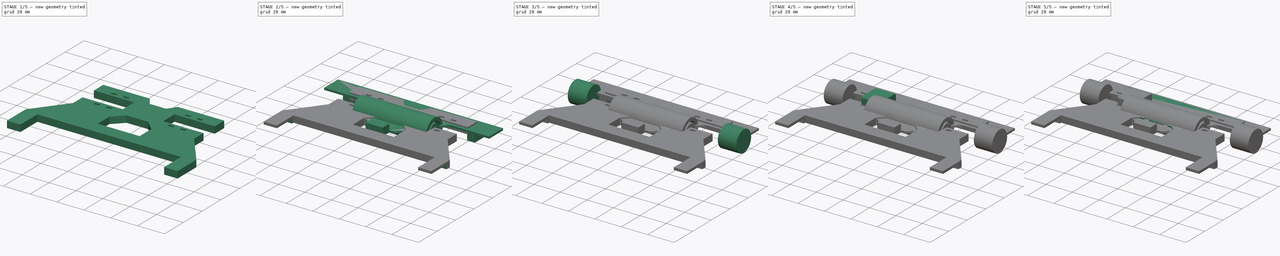
[diagram: build sequence overview — one tinted view per stage of 5, left to right]
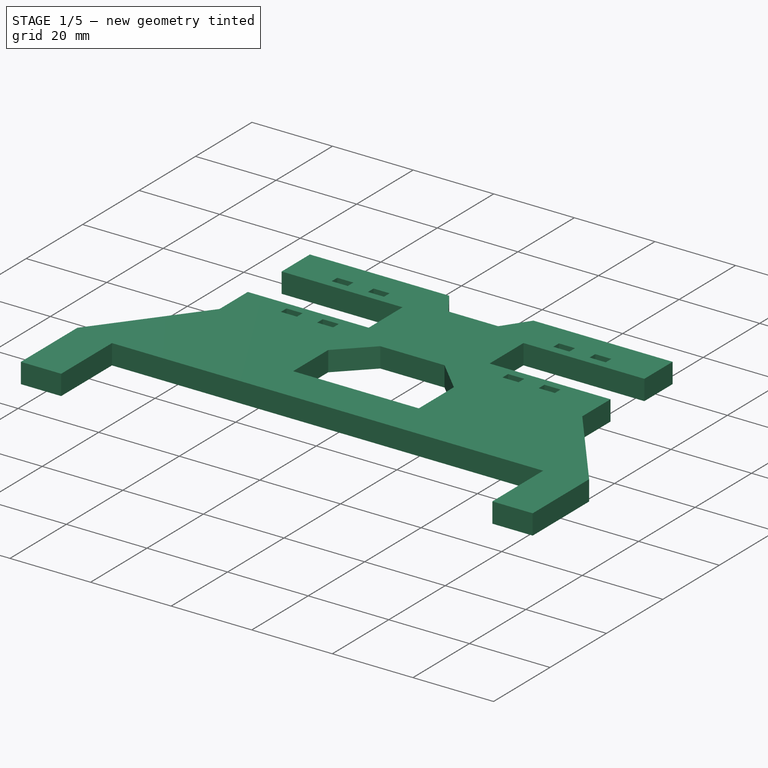
[diagram: stage 1 of 5 — iso view after this stage's code; geometry added in this stage tinted green]
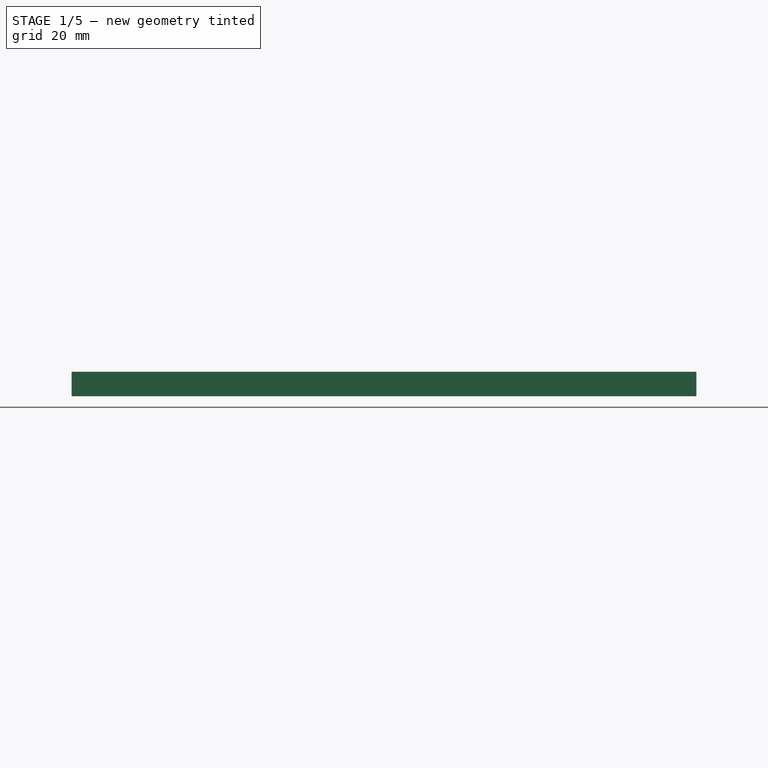
[diagram: stage 1 of 5 — front view after this stage's code; geometry added in this stage tinted green]
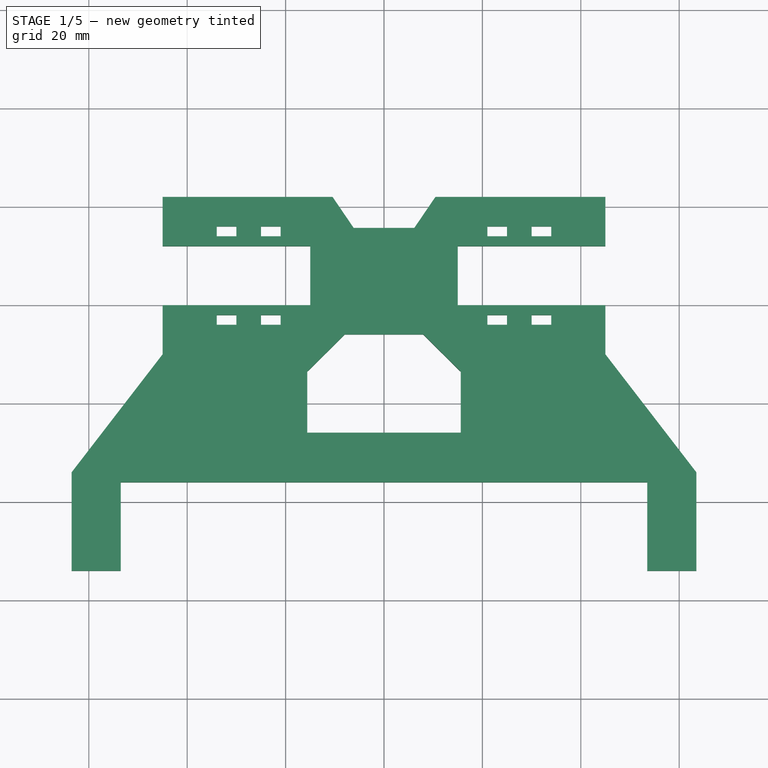
[diagram: stage 1 of 5 — top view after this stage's code; geometry added in this stage tinted green]
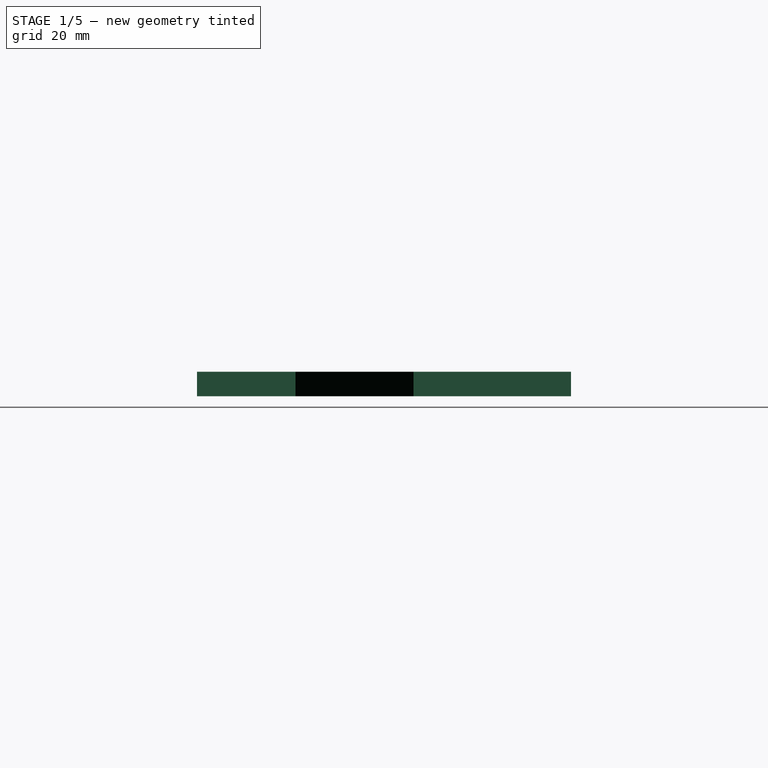
[diagram: stage 1 of 5 — right view after this stage's code; geometry added in this stage tinted green]
FCSTD DOCUMENT  (FreeCAD 0.21R33771 (Git))
Label: chassis_rec
License: All rights reserved
LicenseURL: http://en.wikipedia.org/wiki/All_rights_reserved
objects: Sketcher::SketchObject×18, PartDesign::Pad×10, PartDesign::Pocket×7, PartDesign::Body×6, Part::Feature×6, PartDesign::Mirrored×4, PartDesign::Fillet×2, Part::Cylinder×2, PartDesign::ShapeBinder×1, PartDesign::Plane×1, PartDesign::Chamfer×1, PartDesign::Revolution×1
note: 80 computed .brp shape members not serialized (recipe doc carries the construction recipe); baked Part::Feature solids carry a one-line shape summary decoded from their .brp

FEATURE [PartDesign::Body] Body003002  label="sensor"
  Group = -> [Sketch010,Pad005002,Sketch011,Pad005003,Sketch012,Pad005004]
  Origin = -> Origin004
  Placement = pos=(0,-93.5,0) rot=(0,0,1;0rad)
  Tip = -> Pad005004
FEATURE [Part::Feature] Body003002001  label="sensor001"
  Placement = pos=(0,-62.5,-1) rot=(0,0,1;0rad)
  shape: bbox 125 x 50 x 13 mm, 46 faces (baked)
FEATURE [Part::Feature] Body002001  label="motor001"
  Placement = pos=(20,6,0) rot=(0,0,1;0rad)
  shape: bbox 38.5 x 12 x 10 mm, 22 faces (baked)
FEATURE [Part::Feature] Body001001  label="motor_support002"
  shape: bbox 14.86 x 16 x 5 mm, 14 faces (baked)
FEATURE [Sketcher::SketchObject] Sketch013
  FullyConstrained = true
  MapMode = 5
  Support = -> [XY_Plane005]
  sketch-geometry (21):
    g0: LineSegment StartX=-45 StartY=0 StartZ=0 EndX=-15 EndY=0 EndZ=0
    g1: LineSegment StartX=-15 StartY=0 StartZ=0 EndX=-15 EndY=12 EndZ=0
    g2: LineSegment StartX=-15 StartY=12 StartZ=0 EndX=-45 EndY=12 EndZ=0
    g3: LineSegment StartX=-45 StartY=12 StartZ=0 EndX=-45 EndY=22 EndZ=0
    g4: LineSegment StartX=-45 StartY=0 StartZ=0 EndX=-45 EndY=-10 EndZ=0
    g5: LineSegment StartX=45 StartY=0 StartZ=0 EndX=15 EndY=0 EndZ=0
    g6: LineSegment StartX=15 StartY=0 StartZ=0 EndX=15 EndY=12 EndZ=0
    g7: LineSegment StartX=15 StartY=12 StartZ=0 EndX=45 EndY=12 EndZ=0
    g8: LineSegment StartX=45 StartY=12 StartZ=0 EndX=45 EndY=22 EndZ=0
    g9: LineSegment StartX=45 StartY=0 StartZ=0 EndX=45 EndY=-10 EndZ=0
    g10: LineSegment StartX=-45 StartY=22 StartZ=0 EndX=45 EndY=22 EndZ=0
    g11: LineSegment StartX=-45 StartY=-10 StartZ=0 EndX=45 EndY=-10 EndZ=0
    g12: LineSegment StartX=-45 StartY=-10 StartZ=0 EndX=-63.5 EndY=-34 EndZ=0
    g13: LineSegment StartX=-63.5 StartY=-34 StartZ=0 EndX=-63.5 EndY=-54 EndZ=0
    g14: LineSegment StartX=-63.5 StartY=-54 StartZ=0 EndX=-53.5 EndY=-54 EndZ=0
    g15: LineSegment StartX=-53.5 StartY=-54 StartZ=0 EndX=-53.5 EndY=-36 EndZ=0
    g16: LineSegment StartX=-53.5 StartY=-36 StartZ=0 EndX=53.5 EndY=-36 EndZ=0
    g17: LineSegment StartX=53.5 StartY=-36 StartZ=0 EndX=53.5 EndY=-54 EndZ=0
    g18: LineSegment StartX=53.5 StartY=-54 StartZ=0 EndX=63.5 EndY=-54 EndZ=0
    g19: LineSegment StartX=63.5 StartY=-54 StartZ=0 EndX=63.5 EndY=-34 EndZ=0
    g20: LineSegment StartX=63.5 StartY=-34 StartZ=0 EndX=45 EndY=-10 EndZ=0
  constraints (59):
    c: PointOnObject(g0,g-1)
    c: PointOnObject(g0,g-1)
    c: Coincident(g0,g1)
    c: Vertical(g1)
    c: Coincident(g1,g2)
    c: Horizontal(g2)
    c: Coincident(g2,g3)
    c: Vertical(g3)
    c: Coincident(g0,g4)
    c: Vertical(g4)
    c: DistanceY(g1,g1) = 12
    c: DistanceY(g3,g3) = 10
    c: DistanceY(g4,g4) = 10
    c: DistanceX(g0,g0) = 30
    c: DistanceX(g0,g-1) = 15
    c: Vertical(g2,g0)
    c: Coincident(g5,g6)
    c: Vertical(g6)
    c: Coincident(g6,g7)
    c: Horizontal(g7)
    c: Coincident(g7,g8)
    c: Vertical(g8)
    c: Coincident(g5,g9)
    c: Vertical(g9)
    c: Symmetric(g6,g1,g-2)
    c: Coincident(g10,g3)
    c: Coincident(g10,g8)
    c: Symmetric(g8,g3,g-2)
    c: Vertical(g5,g7)
    c: PointOnObject(g5,g-1)
    c: Horizontal(g5)
    c: Coincident(g4,g11)
    c: Coincident(g11,g9)
    c: Horizontal(g11)
    c: Coincident(g4,g12)
    c: Coincident(g12,g13)
    c: Vertical(g13)
    c: Coincident(g13,g14)
    c: Horizontal(g14)
    c: Coincident(g14,g15)
    c: Vertical(g15)
    c: Coincident(g15,g16)
    c: Horizontal(g16)
    c: Coincident(g16,g17)
    c: Coincident(g17,g18)
    c: Horizontal(g18)
    c: Coincident(g18,g19)
    c: Vertical(g19)
    c: Coincident(g19,g20)
    c: Coincident(g20,g9)
    c: Symmetric(g14,g17,g-2)
    c: Vertical(g17)
    c: Equal(g18,g14)
    c: Equal(g13,g19)
    c: DistanceY(g15,g15) = 18
    c: DistanceY(g13,g13) = 20
    c: DistanceX(g12,g19) = 127
    c: DistanceY(g15,g4) = 26
    c: DistanceX(g14,g14) = 10
FEATURE [PartDesign::Pad] Pad005005
  Direction = (1,1,1)
  Length = 5
  Length2 = 100
  Midplane = true
  Profile = -> Sketch013
  Type = 0
FEATURE [Sketcher::SketchObject] Sketch014
  ExternalGeometry = -> [Pad005005]
  FullyConstrained = true
  MapMode = 5
  Support = -> [XY_Plane005]
  expr: Constraints[12] = 12 + 6
  sketch-geometry (20):
    g0: LineSegment StartX=-34 StartY=-2 StartZ=0 EndX=-30 EndY=-2 EndZ=0
    g1: LineSegment StartX=-30 StartY=-2 StartZ=0 EndX=-30 EndY=-4 EndZ=0
    g2: LineSegment StartX=-30 StartY=-4 StartZ=0 EndX=-34 EndY=-4 EndZ=0
    g3: LineSegment StartX=-34 StartY=-4 StartZ=0 EndX=-34 EndY=-2 EndZ=0
    g4: LineSegment StartX=-34 StartY=16 StartZ=0 EndX=-34 EndY=-2 EndZ=0
    g5: LineSegment StartX=-34 StartY=16 StartZ=0 EndX=-30 EndY=16 EndZ=0
    g6: LineSegment StartX=-30 StartY=16 StartZ=0 EndX=-30 EndY=14 EndZ=0
    g7: LineSegment StartX=-30 StartY=14 StartZ=0 EndX=-34 EndY=14 EndZ=0
    g8: LineSegment StartX=-34 StartY=14 StartZ=0 EndX=-34 EndY=16 EndZ=0
    g9: LineSegment StartX=-34 StartY=-2 StartZ=0 EndX=-34 EndY=16 EndZ=0
    g10: LineSegment StartX=-25 StartY=-2 StartZ=0 EndX=-21 EndY=-2 EndZ=0
    g11: LineSegment StartX=-21 StartY=-2 StartZ=0 EndX=-21 EndY=-4 EndZ=0
    g12: LineSegment StartX=-21 StartY=-4 StartZ=0 EndX=-25 EndY=-4 EndZ=0
    g13: LineSegment StartX=-25 StartY=-4 StartZ=0 EndX=-25 EndY=-2 EndZ=0
    g14: LineSegment StartX=-34 StartY=-2 StartZ=0 EndX=-25 EndY=-2 EndZ=0
    g15: LineSegment StartX=-25 StartY=16 StartZ=0 EndX=-21 EndY=16 EndZ=0
    g16: LineSegment StartX=-21 StartY=16 StartZ=0 EndX=-21 EndY=14 EndZ=0
    g17: LineSegment StartX=-21 StartY=14 StartZ=0 EndX=-25 EndY=14 EndZ=0
    g18: LineSegment StartX=-25 StartY=14 StartZ=0 EndX=-25 EndY=16 EndZ=0
    g19: LineSegment StartX=-25 StartY=-2 StartZ=0 EndX=-25 EndY=16 EndZ=0
  constraints (57):
    c: Coincident(g0,g1)
    c: Coincident(g1,g2)
    c: Coincident(g2,g3)
    c: Coincident(g3,g0)
    c: Horizontal(g0)
    c: Horizontal(g2)
    c: Vertical(g1)
    c: Vertical(g3)
    c: DistanceX(g0,g0) = 4
    c: DistanceY(g3,g3) = 2
    c: DistanceY(g0,g-1) = 2
    c: Vertical(g4)
    c: DistanceY(g4,g4) = 18
    c: Coincident(g5,g6)
    c: Coincident(g6,g7)
    c: Coincident(g7,g8)
    c: Coincident(g8,g5)
    c: Horizontal(g5)
    c: Horizontal(g7)
    c: Vertical(g6)
    c: Vertical(g8)
    c: DistanceX(g5,g5) = 4
    c: DistanceY(g8,g8) = 2
    c: Coincident(g0,g9)
    c: Coincident(g5,g9)
    c: Distance(g9) = 18
    c: Angle(g9) = 1.5708
    c: Coincident(g10,g11)
    c: Coincident(g11,g12)
    c: Coincident(g12,g13)
    c: Coincident(g13,g10)
    c: Horizontal(g10)
    c: Horizontal(g12)
    c: Vertical(g11)
    c: Vertical(g13)
    c: DistanceX(g10,g10) = 4
    c: DistanceY(g13,g13) = 2
    c: Coincident(g0,g14)
    c: Coincident(g10,g14)
    c: Distance(g14) = 9
    c: Perpendicular(g14,g9)
    c: Coincident(g15,g16)
    c: Coincident(g16,g17)
    c: Coincident(g17,g18)
    c: Coincident(g18,g15)
    c: Horizontal(g15)
    c: Horizontal(g17)
    c: Vertical(g16)
    c: Vertical(g18)
    c: DistanceX(g15,g15) = 4
    c: DistanceY(g18,g18) = 2
    c: Coincident(g10,g19)
    c: Coincident(g15,g19)
    c: Equal(g9,g19)
    c: Parallel(g19,g9)
    c: Coincident(g8,g4)
    c: DistanceX(g10,g-3) = 6
FEATURE [Sketcher::SketchObject] Sketch015
  FullyConstrained = false
  MapMode = 5
  Support = -> [XY_Plane005]
  sketch-geometry (4):
    g0: LineSegment StartX=-11.3141 StartY=23.2547 StartZ=0 EndX=-6.158 EndY=15.6865 EndZ=0
    g1: LineSegment StartX=-6.158 StartY=15.6865 StartZ=0 EndX=6.158 EndY=15.6865 EndZ=0
    g2: LineSegment StartX=6.158 StartY=15.6865 StartZ=0 EndX=11.3141 EndY=23.2547 EndZ=0
    g3: LineSegment StartX=11.3141 StartY=23.2547 StartZ=0 EndX=-11.3141 EndY=23.2547 EndZ=0
  constraints (7):
    c: Coincident(g0,g1)
    c: Horizontal(g1)
    c: Coincident(g1,g2)
    c: Coincident(g2,g3)
    c: Coincident(g3,g0)
    c: Symmetric(g2,g0,g-2)
    c: Equal(g0,g2)
FEATURE [Sketcher::SketchObject] Sketch016
  FullyConstrained = false
  MapMode = 5
  Support = -> [XY_Plane005]
  sketch-geometry (6):
    g0: LineSegment StartX=-7.97537 StartY=-5.94245 StartZ=0 EndX=-15.5917 EndY=-13.5068 EndZ=0
    g1: LineSegment StartX=-15.5917 StartY=-13.5068 StartZ=0 EndX=-15.5917 EndY=-25.9321 EndZ=0
    g2: LineSegment StartX=-15.5917 StartY=-25.9321 StartZ=0 EndX=15.5917 EndY=-25.9321 EndZ=0
    g3: LineSegment StartX=15.5917 StartY=-25.9321 StartZ=0 EndX=15.5917 EndY=-13.5068 EndZ=0
    g4: LineSegment StartX=15.5917 StartY=-13.5068 StartZ=0 EndX=7.97537 EndY=-5.94245 EndZ=0
    g5: LineSegment StartX=7.97537 StartY=-5.94245 StartZ=0 EndX=-7.97537 EndY=-5.94245 EndZ=0
  constraints (12):
    c: Coincident(g0,g1)
    c: Vertical(g1)
    c: Coincident(g1,g2)
    c: Horizontal(g2)
    c: Coincident(g2,g3)
    c: Vertical(g3)
    c: Coincident(g3,g4)
    c: Coincident(g4,g5)
    c: Coincident(g5,g0)
    c: Horizontal(g5)
    c: Symmetric(g3,g0,g-2)
    c: Equal(g4,g0)
FEATURE [PartDesign::Pocket] Pocket003
  BaseFeature = -> Pad005005
  Direction = (1,1,1)
  Length = 5
  Length2 = 100
  Midplane = true
  Profile = -> Sketch014
  Type = 1
FEATURE [PartDesign::Mirrored] Mirrored002
  BaseFeature = -> Pocket003
  MirrorPlane = -> Sketch014 [V_Axis]
  Originals = -> [Pocket003]
FEATURE [PartDesign::Pocket] Pocket004
  BaseFeature = -> Mirrored002
  Direction = (1,1,1)
  Length = 5
  Length2 = 100
  Midplane = true
  Profile = -> Sketch015
  Type = 1
FEATURE [PartDesign::Pocket] Pocket005
  BaseFeature = -> Pocket004
  Direction = (1,1,1)
  Length = 5
  Length2 = 100
  Midplane = true
  Profile = -> Sketch016
  Type = 1
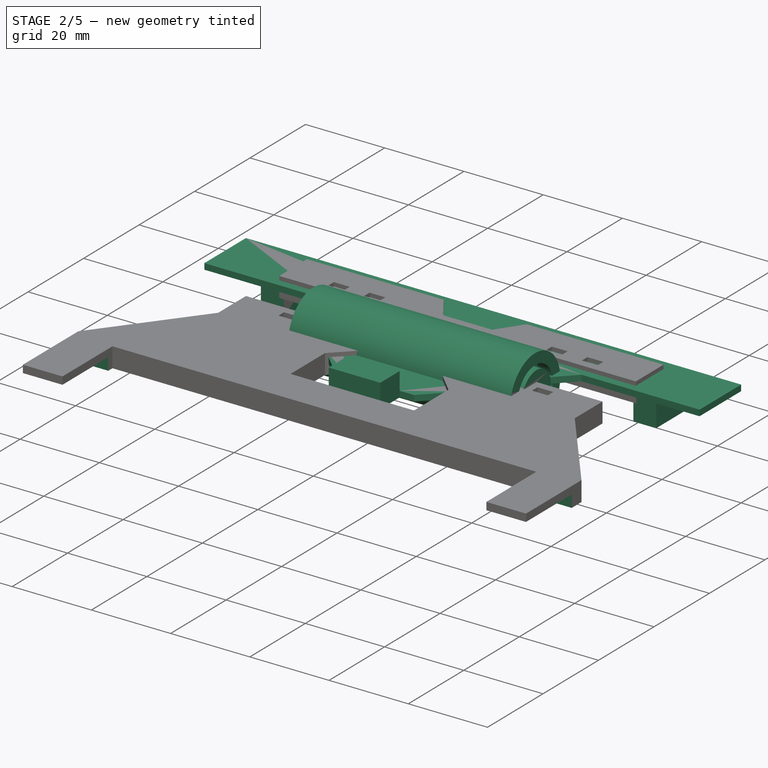
[diagram: stage 2 of 5 — iso view after this stage's code; geometry added in this stage tinted green]
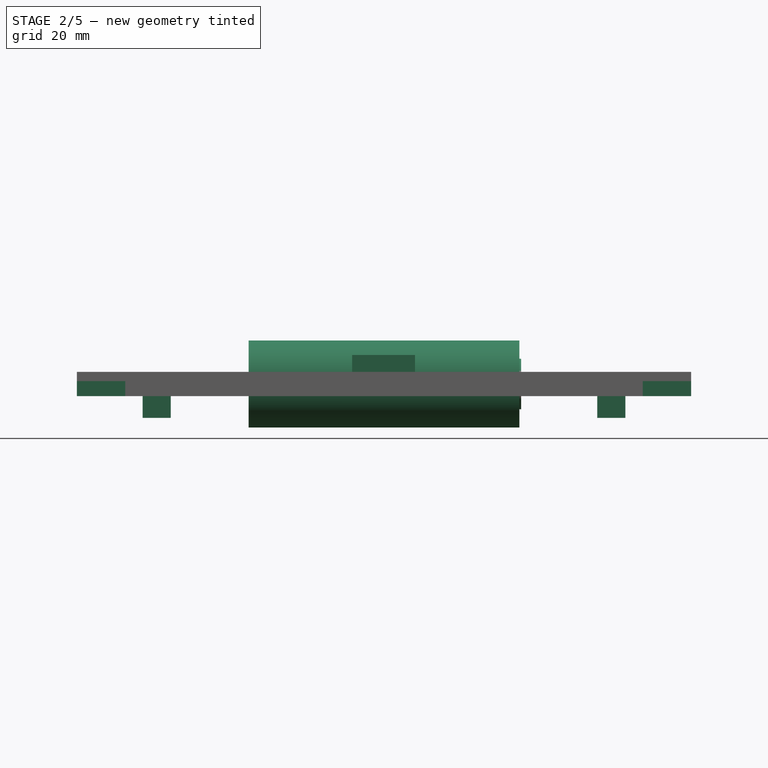
[diagram: stage 2 of 5 — front view after this stage's code; geometry added in this stage tinted green]
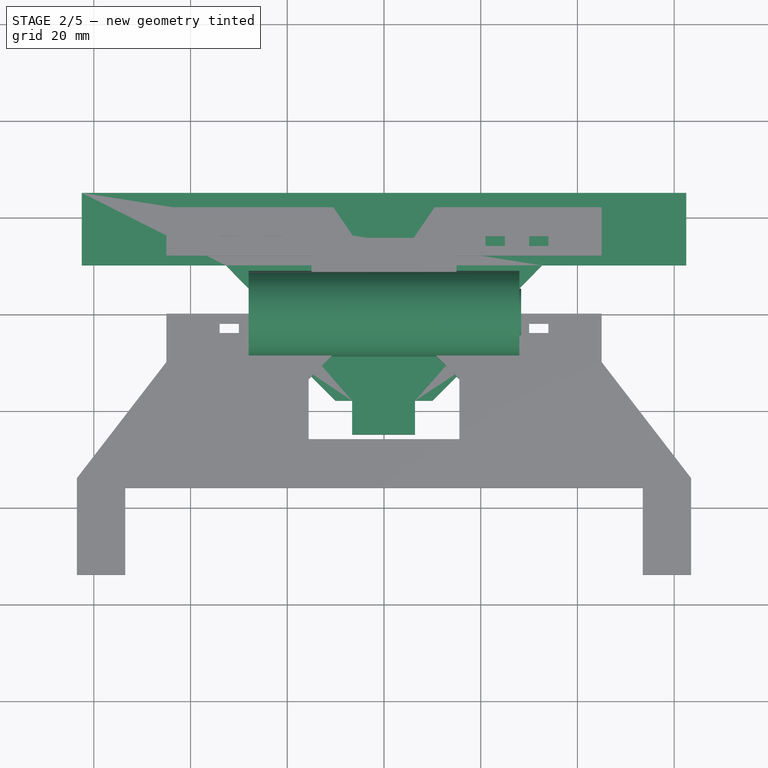
[diagram: stage 2 of 5 — top view after this stage's code; geometry added in this stage tinted green]
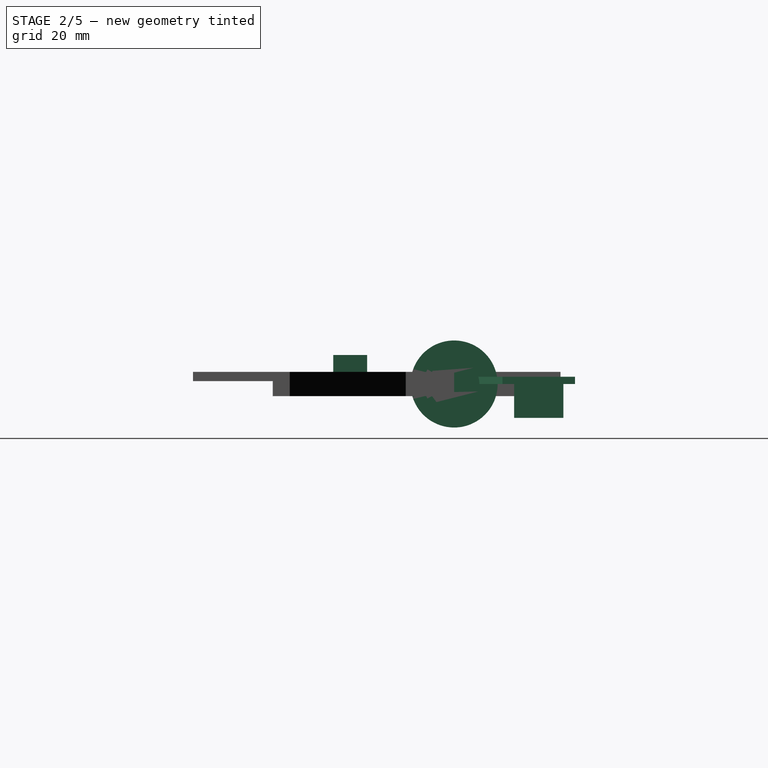
[diagram: stage 2 of 5 — right view after this stage's code; geometry added in this stage tinted green]
FEATURE [Sketcher::SketchObject] Sketch009
  FullyConstrained = false
  MapMode = 5
  Support = -> [XY_Plane003]
  sketch-geometry (8):
    g0: LineSegment StartX=-28 StartY=0 StartZ=0 EndX=28.3419 EndY=0 EndZ=0
    g1: LineSegment StartX=28 StartY=-9 StartZ=0 EndX=-28 EndY=-9 EndZ=0
    g2: LineSegment StartX=-28 StartY=-9 StartZ=0 EndX=-28 EndY=0 EndZ=0
    g3: LineSegment StartX=28 StartY=-9 StartZ=0 EndX=28 EndY=-6.29397 EndZ=0
    g4: LineSegment StartX=28 StartY=-6.29397 StartZ=0 EndX=24.9073 EndY=-6.29397 EndZ=0
    g5: LineSegment StartX=24.9073 StartY=-6.29397 StartZ=0 EndX=24.9073 EndY=-5.22513 EndZ=0
    g6: LineSegment StartX=24.9073 StartY=-5.22513 StartZ=0 EndX=28.3419 EndY=-5.22513 EndZ=0
    g7: LineSegment StartX=28.3419 StartY=-5.22513 StartZ=0 EndX=28.3419 EndY=0 EndZ=0
  constraints (19):
    c: Coincident(g1,g2)
    c: Coincident(g2,g0)
    c: Horizontal(g0)
    c: Vertical(g2)
    c: PointOnObject(g0,g-1)
    c: Coincident(g1,g3)
    c: Vertical(g3)
    c: Coincident(g3,g4)
    c: Horizontal(g4)
    c: Coincident(g4,g5)
    c: Vertical(g5)
    c: Coincident(g5,g6)
    c: Coincident(g6,g7)
    c: Coincident(g7,g0)
    c: Vertical(g7)
    c: Horizontal(g6)
    c: DistanceY(g2,g2) = 9
    c: DistanceX(g1,g1) = 56
    c: Symmetric(g1,g1,g-2)
FEATURE [PartDesign::Revolution] Revolution
  Angle = 360
  Axis = (1,0,0)
  Base = (0,0,0)
  Profile = -> Sketch009
  ReferenceAxis = -> X_Axis003
FEATURE [PartDesign::Body] Body003  label="bateria"
  Group = -> [Sketch009,Revolution,Fillet001]
  Origin = -> Origin003
  Placement = pos=(0,-7,11) rot=(0,0,1;0rad)
  Tip = -> Fillet001
FEATURE [Part::Feature] Body003001  label="bateria001"
  Placement = pos=(0,6,19) rot=(0,0,1;0rad)
  shape: bbox 56.34 x 19.48 x 19.48 mm, 10 faces (baked)
FEATURE [Sketcher::SketchObject] Sketch010
  FullyConstrained = false
  MapMode = 5
  Support = -> [XY_Plane004]
  sketch-geometry (16):
    g0: LineSegment StartX=-62.5 StartY=25 StartZ=0 EndX=62.5 EndY=25 EndZ=0
    g1: LineSegment StartX=62.5 StartY=25 StartZ=0 EndX=62.5 EndY=10 EndZ=0
    g2: LineSegment StartX=62.5 StartY=10 StartZ=0 EndX=32.6867 EndY=10 EndZ=0
    g3: LineSegment StartX=32.6867 StartY=10 StartZ=0 EndX=17 EndY=-6 EndZ=0
    g4: LineSegment StartX=17 StartY=-6 StartZ=0 EndX=17 EndY=-11 EndZ=0
    g5: LineSegment StartX=17 StartY=-11 StartZ=0 EndX=10 EndY=-18 EndZ=0
    g6: LineSegment StartX=10 StartY=-18 StartZ=0 EndX=-10 EndY=-18 EndZ=0
    g7: LineSegment StartX=-10 StartY=-18 StartZ=0 EndX=-17 EndY=-11 EndZ=0
    g8: LineSegment StartX=-17 StartY=-11 StartZ=0 EndX=-17 EndY=-6 EndZ=0
    g9: LineSegment StartX=-17 StartY=-6 StartZ=0 EndX=-32.6867 EndY=10 EndZ=0
    g10: LineSegment StartX=-32.6867 StartY=10 StartZ=0 EndX=-62.5 EndY=10 EndZ=0
    g11: LineSegment StartX=-62.5 StartY=10 StartZ=0 EndX=-62.5 EndY=25 EndZ=0
    g12: LineSegment StartX=-6.5 StartY=-18 StartZ=0 EndX=6.5 EndY=-18 EndZ=0
    g13: LineSegment StartX=6.5 StartY=-18 StartZ=0 EndX=6.5 EndY=-25 EndZ=0
    g14: LineSegment StartX=6.5 StartY=-25 StartZ=0 EndX=-6.5 EndY=-25 EndZ=0
    g15: LineSegment StartX=-6.5 StartY=-25 StartZ=0 EndX=-6.5 EndY=-18 EndZ=0
  constraints (41):
    c: Coincident(g0,g1)
    c: Vertical(g1)
    c: Coincident(g1,g2)
    c: Horizontal(g2)
    c: Coincident(g2,g3)
    c: Coincident(g3,g4)
    c: Vertical(g4)
    c: Coincident(g4,g5)
    c: Coincident(g5,g6)
    c: Coincident(g6,g7)
    c: Coincident(g7,g8)
    c: Coincident(g8,g9)
    c: Coincident(g9,g10)
    c: Horizontal(g10)
    c: Coincident(g10,g11)
    c: Coincident(g11,g0)
    c: Vertical(g11)
    c: DistanceX(g0,g0) = 125
    c: Symmetric(g0,g0,g-2)
    c: DistanceY(g11,g11) = 15
    c: Symmetric(g4,g7,g-2)
    c: Symmetric(g3,g8,g-2)
    c: Symmetric(g2,g9,g-2)
    c: Symmetric(g5,g6,g-2)
    c: DistanceY(g8,g8) = 5
    c: DistanceX(g6,g6) = 20
    c: DistanceX(g7,g6) = 7
    c: Angle(g7) = 2.35619
    c: DistanceY(g-1,g0) = 25
    c: Coincident(g12,g13)
    c: Coincident(g13,g14)
    c: Coincident(g14,g15)
    c: Coincident(g15,g12)
    c: Horizontal(g12)
    c: Vertical(g13)
    c: Vertical(g15)
    c: Symmetric(g14,g13,g-2)
    c: PointOnObject(g12,g6)
    c: DistanceY(g15,g15) = 7
    c: DistanceX(g14,g14) = 13
    c: DistanceY(g14,g0) = 50
FEATURE [PartDesign::Pad] Pad005002
  Direction = (1,1,1)
  Length = 1.5
  Length2 = 100
  Profile = -> Sketch010
  Type = 0
FEATURE [Sketcher::SketchObject] Sketch011
  FullyConstrained = false
  MapMode = 5
  Placement = pos=(0,0,0) rot=(1,0,0;3.14159rad)
  Support = -> [Pad005002]
  expr: Constraints[51] = 17 - 5.8 / 2
  sketch-geometry (20):
    g0: LineSegment StartX=-2.9 StartY=5.1 StartZ=0 EndX=2.9 EndY=5.1 EndZ=0
    g1: LineSegment StartX=2.9 StartY=5.1 StartZ=0 EndX=2.9 EndY=-5.1 EndZ=0
    g2: LineSegment StartX=2.9 StartY=-5.1 StartZ=0 EndX=-2.9 EndY=-5.1 EndZ=0
    g3: LineSegment StartX=-2.9 StartY=-5.1 StartZ=0 EndX=-2.9 EndY=5.1 EndZ=0
    g4: LineSegment StartX=-49.9 StartY=-12.3972 StartZ=0 EndX=-44.1 EndY=-12.3972 EndZ=0
    g5: LineSegment StartX=-44.1 StartY=-12.3972 StartZ=0 EndX=-44.1 EndY=-22.5972 EndZ=0
    g6: LineSegment StartX=-44.1 StartY=-22.5972 StartZ=0 EndX=-49.9 EndY=-22.5972 EndZ=0
    g7: LineSegment StartX=-49.9 StartY=-22.5972 StartZ=0 EndX=-49.9 EndY=-12.3972 EndZ=0
    g8: LineSegment StartX=-19.9 StartY=-12.3972 StartZ=0 EndX=-14.1 EndY=-12.3972 EndZ=0
    g9: LineSegment StartX=-14.1 StartY=-12.3972 StartZ=0 EndX=-14.1 EndY=-22.5972 EndZ=0
    g10: LineSegment StartX=-14.1 StartY=-22.5972 StartZ=0 EndX=-19.9 EndY=-22.5972 EndZ=0
    g11: LineSegment StartX=-19.9 StartY=-22.5972 StartZ=0 EndX=-19.9 EndY=-12.3972 EndZ=0
    g12: LineSegment StartX=14.1 StartY=-12.3972 StartZ=0 EndX=19.9 EndY=-12.3972 EndZ=0
    g13: LineSegment StartX=19.9 StartY=-12.3972 StartZ=0 EndX=19.9 EndY=-22.5972 EndZ=0
    g14: LineSegment StartX=19.9 StartY=-22.5972 StartZ=0 EndX=14.1 EndY=-22.5972 EndZ=0
    g15: LineSegment StartX=14.1 StartY=-22.5972 StartZ=0 EndX=14.1 EndY=-12.3972 EndZ=0
    g16: LineSegment StartX=44.1 StartY=-12.3972 StartZ=0 EndX=49.9 EndY=-12.3972 EndZ=0
    g17: LineSegment StartX=49.9 StartY=-12.3972 StartZ=0 EndX=49.9 EndY=-22.5972 EndZ=0
    g18: LineSegment StartX=49.9 StartY=-22.5972 StartZ=0 EndX=44.1 EndY=-22.5972 EndZ=0
    g19: LineSegment StartX=44.1 StartY=-22.5972 StartZ=0 EndX=44.1 EndY=-12.3972 EndZ=0
  constraints (56):
    c: Coincident(g0,g1)
    c: Coincident(g1,g2)
    c: Coincident(g2,g3)
    c: Coincident(g3,g0)
    c: Horizontal(g0)
    c: Horizontal(g2)
    c: Vertical(g1)
    c: Vertical(g3)
    c: Symmetric(g2,g0,g-1)
    c: DistanceX(g2,g2) = 5.8
    c: DistanceY(g1,g1) = 10.2
    c: Coincident(g4,g5)
    c: Coincident(g5,g6)
    c: Coincident(g6,g7)
    c: Coincident(g7,g4)
    c: Horizontal(g4)
    c: Horizontal(g6)
    c: Vertical(g5)
    c: Vertical(g7)
    c: Equal(g2,g6) = 5.8
    c: Equal(g1,g5) = 10.2
    c: Coincident(g8,g9)
    c: Coincident(g9,g10)
    c: Coincident(g10,g11)
    c: Coincident(g11,g8)
    c: Horizontal(g8)
    c: Horizontal(g10)
    c: Vertical(g9)
    c: Vertical(g11)
    c: Equal(g2,g10) = 5.8
    c: Equal(g1,g9) = 10.2
    c: Coincident(g12,g13)
    c: Coincident(g13,g14)
    c: Coincident(g14,g15)
    c: Coincident(g15,g12)
    c: Horizontal(g12)
    c: Horizontal(g14)
    c: Vertical(g13)
    c: Vertical(g15)
    c: Equal(g2,g14) = 5.8
    c: Equal(g1,g13) = 10.2
    c: Coincident(g16,g17)
    c: Coincident(g17,g18)
    c: Coincident(g18,g19)
    c: Coincident(g19,g16)
    c: Horizontal(g16)
    c: Horizontal(g18)
    c: Vertical(g17)
    c: Vertical(g19)
    c: Equal(g2,g18) = 5.8
    c: Equal(g1,g17) = 10.2
    c: DistanceX(g9,g-1) = 14.1
    c: Symmetric(g9,g14,g-2)
    c: DistanceX(g6,g10) = 30
    c: Horizontal(g10,g5)
    c: Symmetric(g5,g18,g-2)
FEATURE [PartDesign::Pad] Pad005003
  BaseFeature = -> Pad005002
  Direction = (1,1,1)
  Length = 7
  Length2 = 100
  Profile = -> Sketch011
  Type = 0
FEATURE [Sketcher::SketchObject] Sketch012
  ExternalGeometry = -> [Pad005003]
  FullyConstrained = false
  MapMode = 5
  Support = -> [XY_Plane004]
  sketch-geometry (4):
    g0: LineSegment StartX=-6.59151 StartY=-18 StartZ=0 EndX=6.40849 EndY=-18 EndZ=0
    g1: LineSegment StartX=6.40849 StartY=-18 StartZ=0 EndX=6.40849 EndY=-25 EndZ=0
    g2: LineSegment StartX=6.40849 StartY=-25 StartZ=0 EndX=-6.59151 EndY=-25 EndZ=0
    g3: LineSegment StartX=-6.59151 StartY=-25 StartZ=0 EndX=-6.59151 EndY=-18 EndZ=0
  constraints (11):
    c: Coincident(g0,g1)
    c: Coincident(g1,g2)
    c: Coincident(g2,g3)
    c: Coincident(g3,g0)
    c: Horizontal(g0)
    c: Horizontal(g2)
    c: Vertical(g1)
    c: Vertical(g3)
    c: PointOnObject(g0,g-3)
    c: DistanceY(g3,g3) = 7
    c: DistanceX(g2,g2) = 13
FEATURE [PartDesign::Pad] Pad005004
  BaseFeature = -> Pad005003
  Direction = (1,1,1)
  Length = 6
  Length2 = 100
  Profile = -> Sketch012
  Type = 0
FEATURE [Sketcher::SketchObject] Sketch017
  AttachmentOffset = pos=(0,0,37.5) rot=(0,0,1;0rad)
  FullyConstrained = false
  MapMode = 5
  Placement = pos=(0,-37.5,-8.3e-15) rot=(1,0,0;1.5708rad)
  Support = -> [XZ_Plane005]
  sketch-geometry (4):
    g0: LineSegment StartX=-63.8322 StartY=0.598051 StartZ=0 EndX=-53.0155 EndY=0.598051 EndZ=0
    g1: LineSegment StartX=-53.0155 StartY=0.598051 StartZ=0 EndX=-53.0155 EndY=-3.12111 EndZ=0
    g2: LineSegment StartX=-53.0155 StartY=-3.12111 StartZ=0 EndX=-63.8322 EndY=-3.12111 EndZ=0
    g3: LineSegment StartX=-63.8322 StartY=-3.12111 StartZ=0 EndX=-63.8322 EndY=0.598051 EndZ=0
  constraints (8):
    c: Coincident(g0,g1)
    c: Coincident(g1,g2)
    c: Coincident(g2,g3)
    c: Coincident(g3,g0)
    c: Horizontal(g0)
    c: Horizontal(g2)
    c: Vertical(g1)
    c: Vertical(g3)
FEATURE [PartDesign::Pocket] Pocket006
  BaseFeature = -> Pocket005
  Direction = (1,1,1)
  Length = 5
  Length2 = 100
  Profile = -> Sketch017
  Reversed = true
  Type = 1
FEATURE [PartDesign::Mirrored] Mirrored003
  BaseFeature = -> Pocket006
  MirrorPlane = -> Sketch017 [V_Axis]
  Originals = -> [Pocket006]
FEATURE [PartDesign::Body] Body003002002  label="chassis"
  Group = -> [Sketch013,Pad005005,Sketch014,Sketch015,Sketch016,Pocket003,Mirrored002,Pocket004,Pocket005,Sketch017,Pocket006,Mirrored003]
  Origin = -> Origin005
  Tip = -> Mirrored003
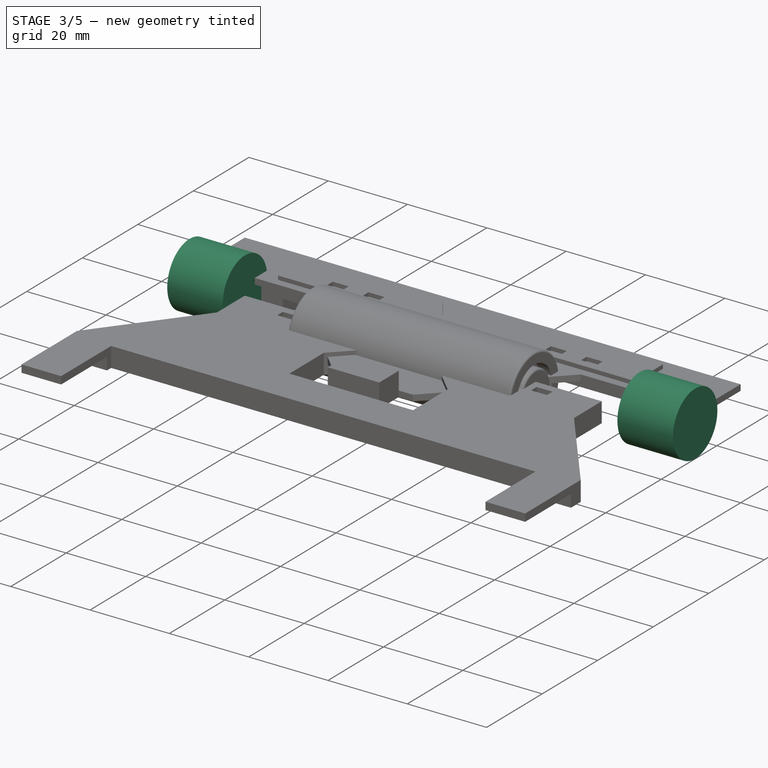
[diagram: stage 3 of 5 — iso view after this stage's code; geometry added in this stage tinted green]
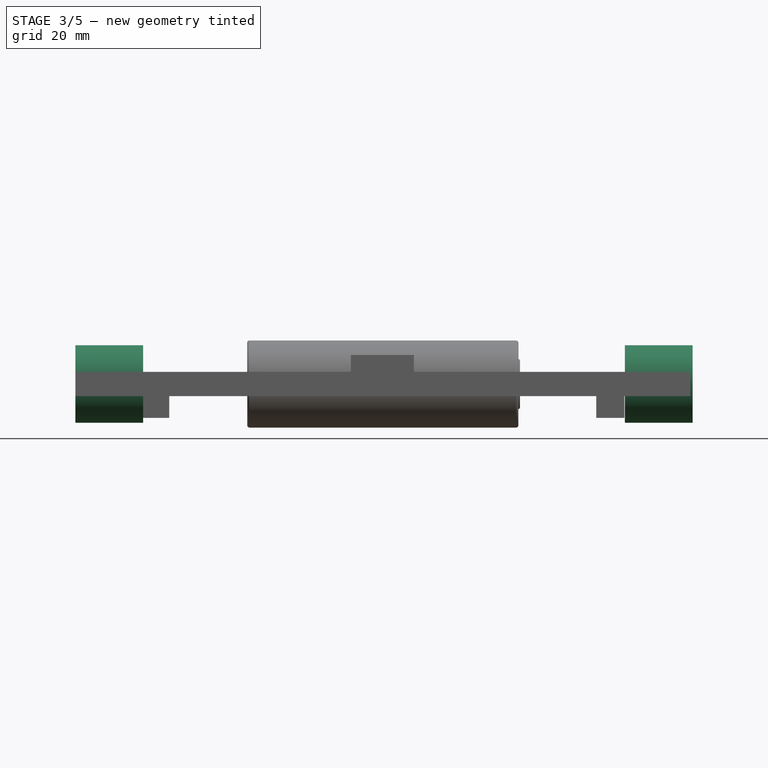
[diagram: stage 3 of 5 — front view after this stage's code; geometry added in this stage tinted green]
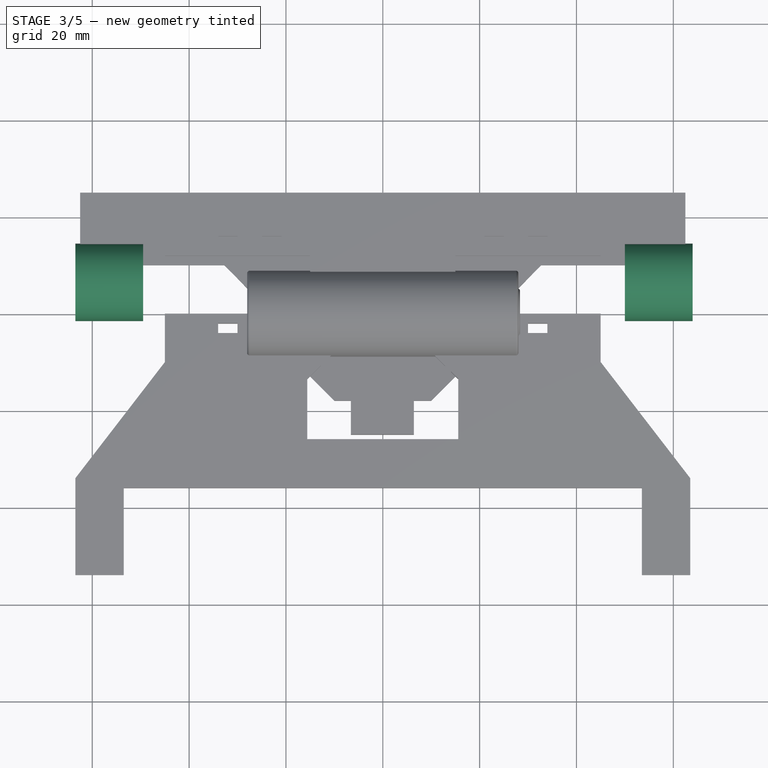
[diagram: stage 3 of 5 — top view after this stage's code; geometry added in this stage tinted green]
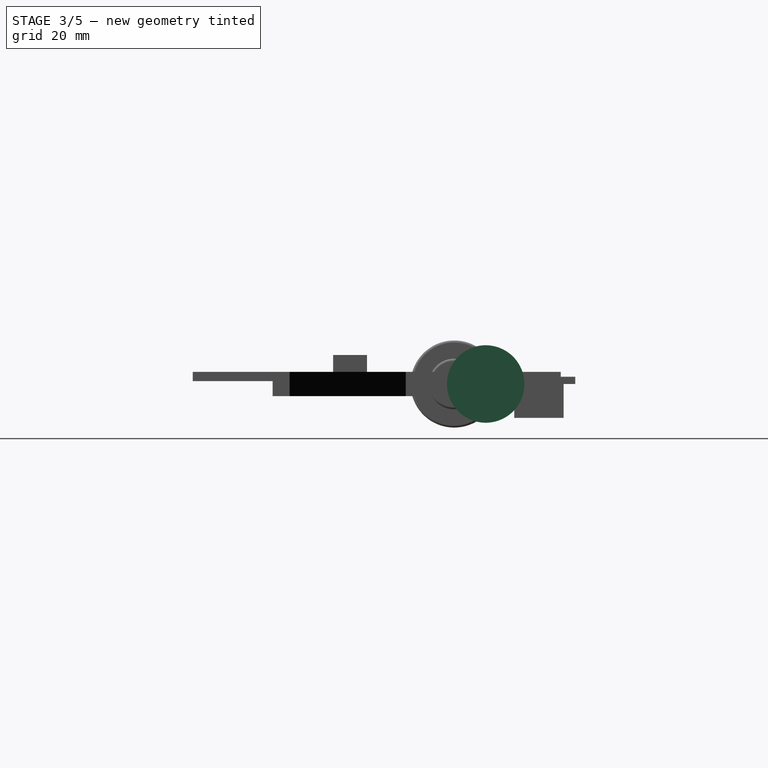
[diagram: stage 3 of 5 — right view after this stage's code; geometry added in this stage tinted green]
FEATURE [PartDesign::Body] Body001  label="motor_support"
  Group = -> [DatumPlane,CopyMirrored001,Sketch003,Pad001,Sketch004,Pocket002,Chamfer]
  Origin = -> Origin001
  Tip = -> Chamfer
FEATURE [Sketcher::SketchObject] Sketch005
  FullyConstrained = true
  MapMode = 5
  Placement = pos=(0,0,0) rot=(0.57735,0.57735,0.57735;2.0944rad)
  Support = -> [YZ_Plane002]
  sketch-geometry (5):
    g0: Circle CenterX=0 CenterY=0 CenterZ=0 NormalX=0 NormalY=0 NormalZ=1 AngleXU=0 Radius=6
    g1: ArcOfCircle CenterX=0 CenterY=0 CenterZ=0 NormalX=0 NormalY=0 NormalZ=1 AngleXU=0 Radius=6 StartAngle=2.15648 EndAngle=4.1267
    g2: ArcOfCircle CenterX=0 CenterY=0 CenterZ=0 NormalX=0 NormalY=0 NormalZ=1 AngleXU=0 Radius=6 StartAngle=5.29807 EndAngle=7.2683
    g3: LineSegment StartX=-3.31662 StartY=5 StartZ=0 EndX=3.31662 EndY=5 EndZ=0
    g4: LineSegment StartX=-3.31662 StartY=-5 StartZ=0 EndX=3.31662 EndY=-5 EndZ=0
  constraints (13):
    c: Coincident(g0,g-1)
    c: Diameter(g0) = 12
    c: Coincident(g1,g-1)
    c: PointOnObject(g1,g0)
    c: Coincident(g2,g1)
    c: Coincident(g3,g1)
    c: Coincident(g3,g2)
    c: Horizontal(g3)
    c: Coincident(g4,g1)
    c: Coincident(g4,g2)
    c: Horizontal(g4)
    c: Symmetric(g1,g2,g1)
    c: DistanceY(g1,g1) = 10
FEATURE [PartDesign::Pad] Pad002
  Direction = (1,1,1)
  Length = 15
  Length2 = 100
  Placement = pos=(0,0,0) rot=(0.57735,0.57735,0.57735;2.0944rad)
  Profile = -> Sketch005
  Type = 0
FEATURE [Sketcher::SketchObject] Sketch006
  FullyConstrained = true
  MapMode = 5
  Placement = pos=(0,0,0) rot=(0.57735,0.57735,0.57735;2.0944rad)
  Support = -> [YZ_Plane002]
  sketch-geometry (1):
    g0: Circle CenterX=0 CenterY=0 CenterZ=0 NormalX=0 NormalY=0 NormalZ=1 AngleXU=0 Radius=2
  constraints (2):
    c: Coincident(g0,g-1)
    c: Diameter(g0) = 4
FEATURE [PartDesign::Pad] Pad003
  BaseFeature = -> Pad002
  Direction = (1,1,1)
  Length = 1
  Length2 = 100
  Placement = pos=(0,0,0) rot=(0.57735,0.57735,0.57735;2.0944rad)
  Profile = -> Sketch006
  Reversed = true
  Type = 0
FEATURE [PartDesign::Body] Body002  label="motor"
  Group = -> [Sketch005,Pad002,Sketch006,Pad003,Sketch007,Pad004,Fillet,Sketch008,Pad005]
  Origin = -> Origin002
  Placement = pos=(20,6,0) rot=(0,0,1;0rad)
  Tip = -> Pad005
FEATURE [Part::Feature] Chamfer001  label="motor_support001"
  Placement = pos=(54.5,0,2.5) rot=(0,0,1;0rad)
  shape: bbox 14.86 x 16 x 5 mm, 14 faces (baked)
FEATURE [Part::Feature] Pad005001  label="motor002"
  Placement = pos=(-20,6,2e-15) rot=(0.57735,-0.57735,-0.57735;2.0944rad)
  shape: bbox 38.5 x 12 x 10 mm, 22 faces (baked)
FEATURE [Part::Cylinder] Cylinder  label="roda1"
  Angle = 360
  AttacherType = Attacher::AttachEngine3D
  FirstAngle = 0
  Height = 14
  Placement = pos=(50,6.5,1.11e-14) rot=(0,1,0;1.5708rad)
  Radius = 8
  SecondAngle = 0
FEATURE [Part::Cylinder] Cylinder001  label="roda2"
  Angle = 360
  AttacherType = Attacher::AttachEngine3D
  FirstAngle = 0
  Height = 14
  Placement = pos=(-63.5,6.5,-1.41e-14) rot=(0,1,0;1.5708rad)
  Radius = 8
  SecondAngle = 0
FEATURE [PartDesign::Fillet] Fillet001
  Base = -> Revolution [Edge2,Edge1,Edge4]
  BaseFeature = -> Revolution
  Radius = 0.5
  SupportTransform = false
  UseAllEdges = false
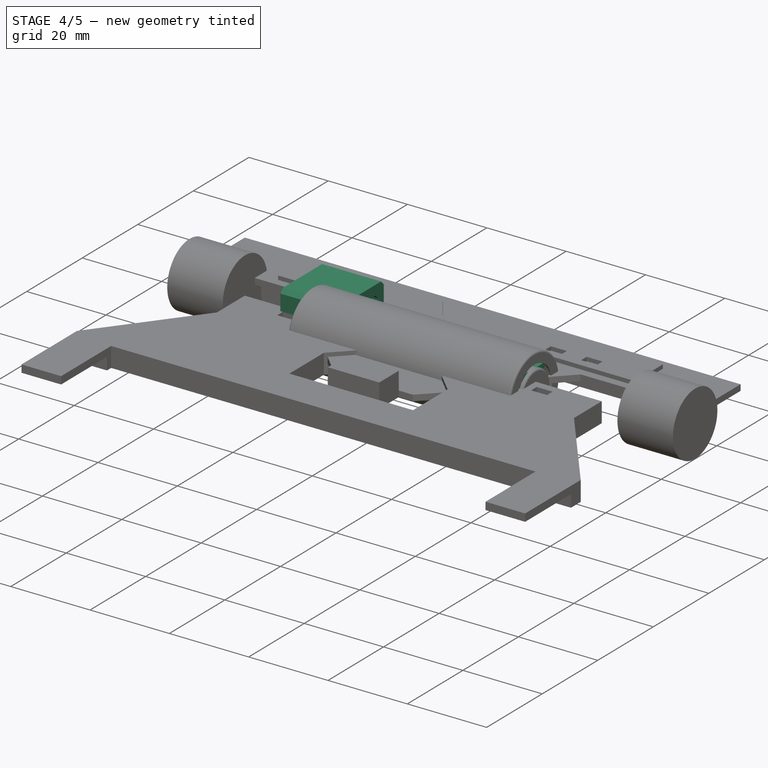
[diagram: stage 4 of 5 — iso view after this stage's code; geometry added in this stage tinted green]
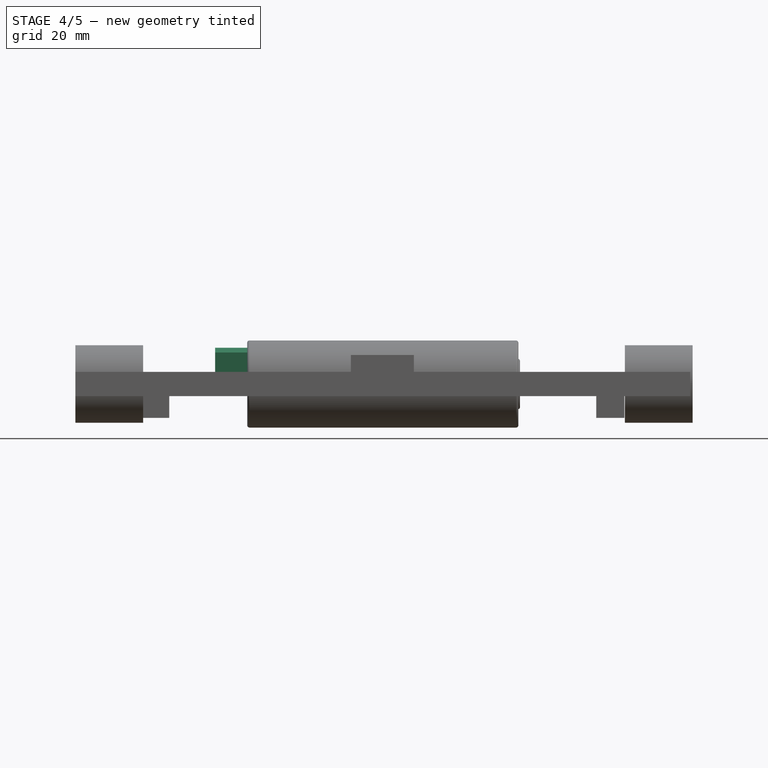
[diagram: stage 4 of 5 — front view after this stage's code; geometry added in this stage tinted green]
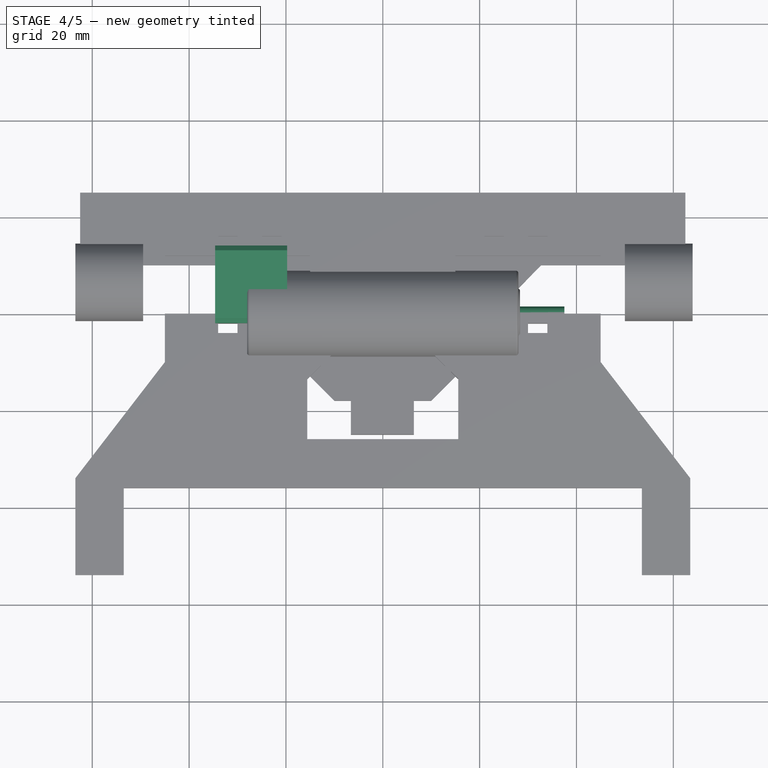
[diagram: stage 4 of 5 — top view after this stage's code; geometry added in this stage tinted green]
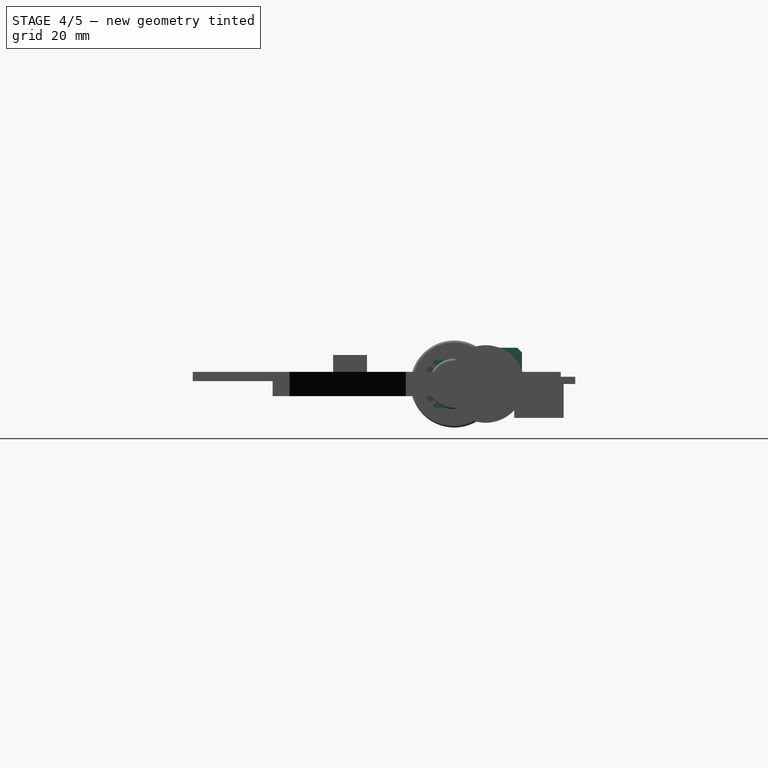
[diagram: stage 4 of 5 — right view after this stage's code; geometry added in this stage tinted green]
FEATURE [PartDesign::Body] Body  label="testbed"
  Group = -> [Sketch,Pad,Sketch001,Pocket,Mirrored,Sketch002,Pocket001,Mirrored001]
  Origin = -> Origin
  Tip = -> Mirrored001
FEATURE [PartDesign::ShapeBinder] CopyMirrored001
  TraceSupport = false
FEATURE [PartDesign::Plane] DatumPlane
  Length = 70.5399
  MapMode = 5
  Placement = pos=(0,0,2.5) rot=(0,0,1;0rad)
  ResizeMode = 0
  Support = -> [CopyMirrored001]
  Width = 60.9197
FEATURE [Sketcher::SketchObject] Sketch003
  FullyConstrained = false
  MapMode = 5
  Placement = pos=(0,0,2.5) rot=(0,0,1;0rad)
  Support = -> [DatumPlane]
  expr: Constraints[8] = 12 + 4
  sketch-geometry (4):
    g0: LineSegment StartX=-34.6201 StartY=14 StartZ=0 EndX=-19.7586 EndY=14 EndZ=0
    g1: LineSegment StartX=-19.7586 StartY=14 StartZ=0 EndX=-19.7586 EndY=-2 EndZ=0
    g2: LineSegment StartX=-19.7586 StartY=-2 StartZ=0 EndX=-34.6201 EndY=-2 EndZ=0
    g3: LineSegment StartX=-34.6201 StartY=-2 StartZ=0 EndX=-34.6201 EndY=14 EndZ=0
  constraints (10):
    c: Coincident(g0,g1)
    c: Coincident(g1,g2)
    c: Coincident(g2,g3)
    c: Coincident(g3,g0)
    c: Horizontal(g0)
    c: Horizontal(g2)
    c: Vertical(g1)
    c: Vertical(g3)
    c: DistanceY(g1,g1) = 16
    c: DistanceY(g1,g-1) = 2
FEATURE [PartDesign::Pad] Pad001
  Direction = (1,1,1)
  Length = 5
  Length2 = 100
  Placement = pos=(0,0,2.5) rot=(0,0,1;0rad)
  Profile = -> Sketch003
  Type = 0
FEATURE [Sketcher::SketchObject] Sketch004
  ExternalGeometry = -> [Pad001]
  FullyConstrained = true
  MapMode = 5
  Placement = pos=(0,0,0) rot=(0.57735,0.57735,0.57735;2.0944rad)
  Support = -> [YZ_Plane001]
  sketch-geometry (4):
    g0: LineSegment StartX=0 StartY=5 StartZ=0 EndX=12 EndY=5 EndZ=0
    g1: LineSegment StartX=12 StartY=5 StartZ=0 EndX=12 EndY=2.5 EndZ=0
    g2: LineSegment StartX=12 StartY=2.5 StartZ=0 EndX=0 EndY=2.5 EndZ=0
    g3: LineSegment StartX=0 StartY=2.5 StartZ=0 EndX=0 EndY=5 EndZ=0
  constraints (12):
    c: Coincident(g0,g1)
    c: Coincident(g1,g2)
    c: Coincident(g2,g3)
    c: Coincident(g3,g0)
    c: Horizontal(g0)
    c: Horizontal(g2)
    c: Vertical(g1)
    c: Vertical(g3)
    c: PointOnObject(g0,g-2)
    c: Horizontal(g-3,g2)
    c: DistanceY(g3,g3) = 2.5
    c: DistanceX(g0,g0) = 12
FEATURE [PartDesign::Pocket] Pocket002
  BaseFeature = -> Pad001
  Direction = (1,1,1)
  Length = 5
  Length2 = 100
  Placement = pos=(0,0,2.5) rot=(0,0,1;0rad)
  Profile = -> Sketch004
  Type = 1
FEATURE [PartDesign::Chamfer] Chamfer
  Angle = 45
  Base = -> Pocket002 [Edge24,Edge23,Edge20,Edge4]
  BaseFeature = -> Pocket002
  ChamferType = 0
  FlipDirection = false
  Placement = pos=(0,0,2.5) rot=(0,0,1;0rad)
  Size = 1
  Size2 = 1
  SupportTransform = false
  UseAllEdges = false
FEATURE [Sketcher::SketchObject] Sketch007
  AttachmentOffset = pos=(0,0,15) rot=(0,0,1;0rad)
  FullyConstrained = true
  MapMode = 5
  Placement = pos=(15,-3.3e-15,3.3e-15) rot=(0.57735,0.57735,0.57735;2.0944rad)
  Support = -> [YZ_Plane002]
  sketch-geometry (4):
    g0: LineSegment StartX=-6 StartY=5 StartZ=0 EndX=6 EndY=5 EndZ=0
    g1: LineSegment StartX=6 StartY=5 StartZ=0 EndX=6 EndY=-5 EndZ=0
    g2: LineSegment StartX=6 StartY=-5 StartZ=0 EndX=-6 EndY=-5 EndZ=0
    g3: LineSegment StartX=-6 StartY=-5 StartZ=0 EndX=-6 EndY=5 EndZ=0
  constraints (11):
    c: Coincident(g0,g1)
    c: Coincident(g1,g2)
    c: Coincident(g2,g3)
    c: Coincident(g3,g0)
    c: Horizontal(g0)
    c: Horizontal(g2)
    c: Vertical(g1)
    c: Vertical(g3)
    c: Symmetric(g1,g0,g-1)
    c: DistanceX(g2,g2) = 12
    c: DistanceY(g1,g1) = 10
FEATURE [PartDesign::Pad] Pad004
  BaseFeature = -> Pad003
  Direction = (1,1,1)
  Length = 12.5
  Length2 = 100
  Placement = pos=(0,0,0) rot=(0.57735,0.57735,0.57735;2.0944rad)
  Profile = -> Sketch007
  Type = 0
FEATURE [PartDesign::Fillet] Fillet
  Base = -> Pad004 [Edge20,Edge21,Edge25,Edge24]
  BaseFeature = -> Pad004
  Placement = pos=(0,0,0) rot=(0.57735,0.57735,0.57735;2.0944rad)
  Radius = 0.5
  SupportTransform = false
  UseAllEdges = false
FEATURE [Sketcher::SketchObject] Sketch008
  AttachmentOffset = pos=(0,0,27.5) rot=(0,0,1;0rad)
  FullyConstrained = true
  MapMode = 5
  Placement = pos=(27.5,-6.1e-15,6.1e-15) rot=(0.57735,0.57735,0.57735;2.0944rad)
  Support = -> [YZ_Plane002]
  expr: .AttachmentOffset.Base.z = 15 + 12.5
  sketch-geometry (1):
    g0: Circle CenterX=0 CenterY=0 CenterZ=0 NormalX=0 NormalY=0 NormalZ=1 AngleXU=0 Radius=1.5
  constraints (2):
    c: Coincident(g0,g-1)
    c: Diameter(g0) = 3
FEATURE [PartDesign::Pad] Pad005
  BaseFeature = -> Fillet
  Direction = (1,1,1)
  Length = 10
  Length2 = 100
  Placement = pos=(0,0,0) rot=(0.57735,0.57735,0.57735;2.0944rad)
  Profile = -> Sketch008
  Type = 0
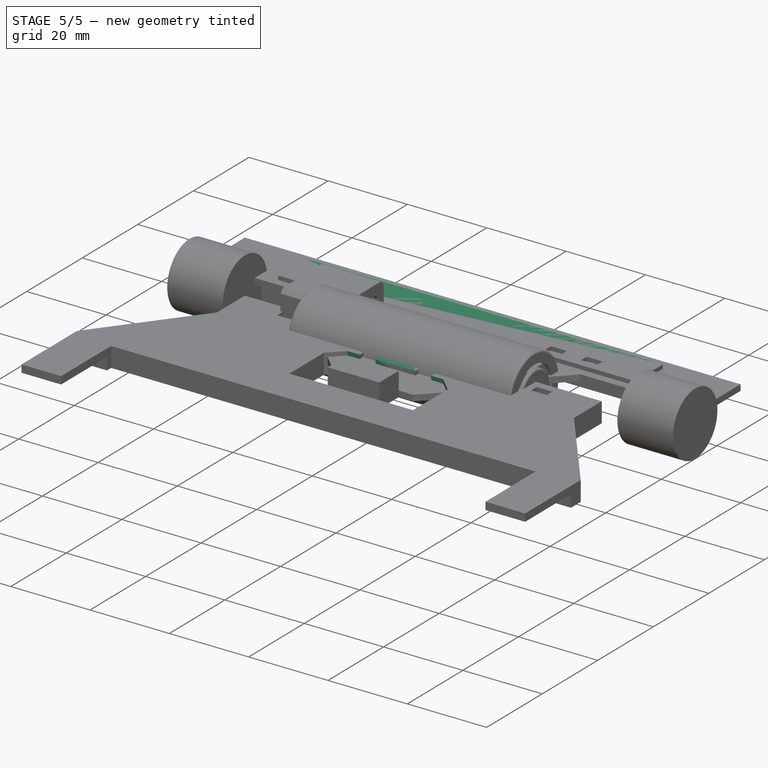
[diagram: stage 5 of 5 — iso view after this stage's code; geometry added in this stage tinted green]
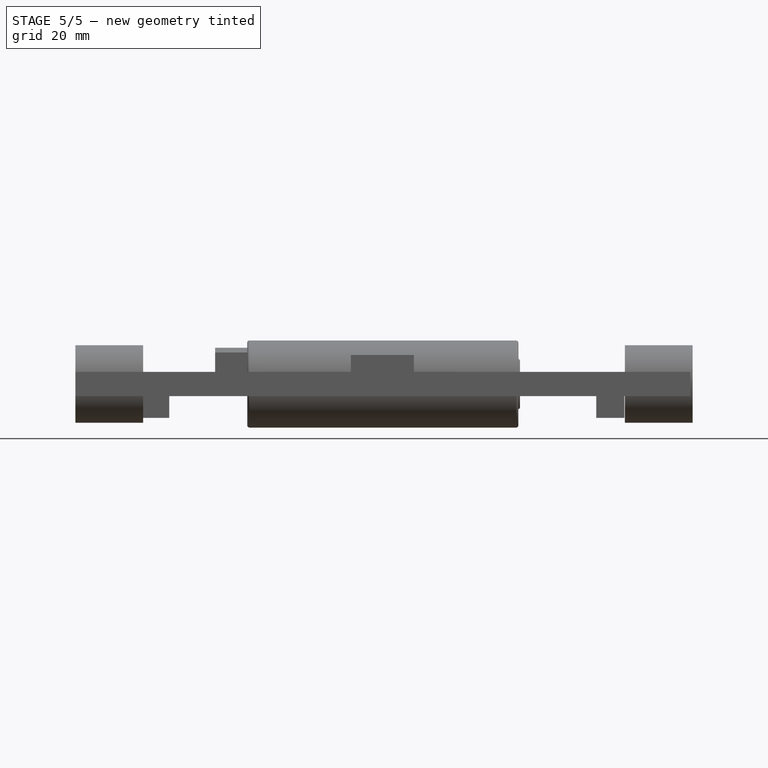
[diagram: stage 5 of 5 — front view after this stage's code; geometry added in this stage tinted green]
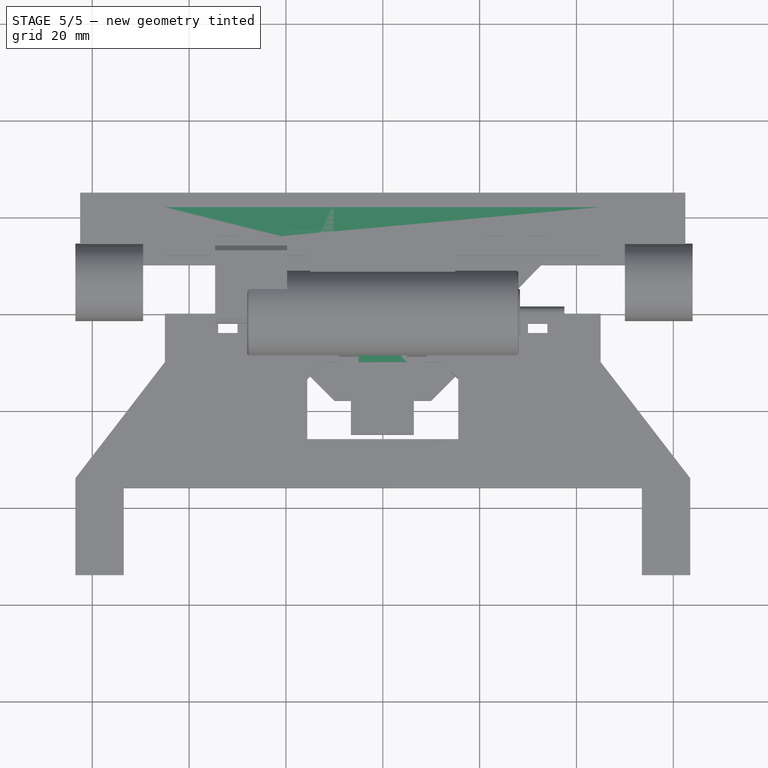
[diagram: stage 5 of 5 — top view after this stage's code; geometry added in this stage tinted green]
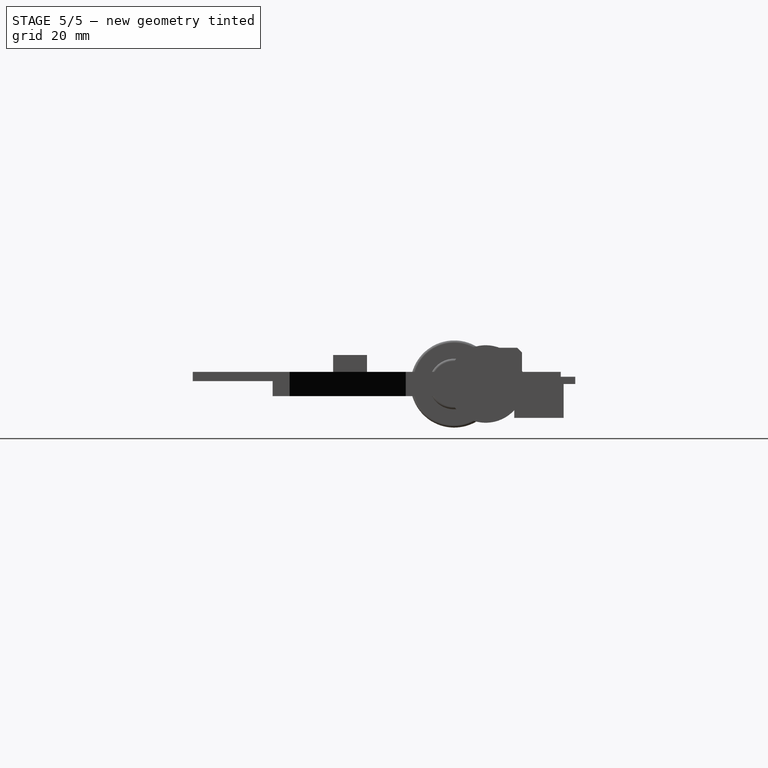
[diagram: stage 5 of 5 — right view after this stage's code; geometry added in this stage tinted green]
FEATURE [Sketcher::SketchObject] Sketch
  FullyConstrained = true
  MapMode = 5
  Support = -> [XY_Plane]
  sketch-geometry (12):
    g0: LineSegment StartX=-45 StartY=0 StartZ=0 EndX=-15 EndY=0 EndZ=0
    g1: LineSegment StartX=-15 StartY=0 StartZ=0 EndX=-15 EndY=12 EndZ=0
    g2: LineSegment StartX=-15 StartY=12 StartZ=0 EndX=-45 EndY=12 EndZ=0
    g3: LineSegment StartX=-45 StartY=12 StartZ=0 EndX=-45 EndY=22 EndZ=0
    g4: LineSegment StartX=-45 StartY=0 StartZ=0 EndX=-45 EndY=-10 EndZ=0
    g5: LineSegment StartX=45 StartY=0 StartZ=0 EndX=15 EndY=0 EndZ=0
    g6: LineSegment StartX=15 StartY=0 StartZ=0 EndX=15 EndY=12 EndZ=0
    g7: LineSegment StartX=15 StartY=12 StartZ=0 EndX=45 EndY=12 EndZ=0
    g8: LineSegment StartX=45 StartY=12 StartZ=0 EndX=45 EndY=22 EndZ=0
    g9: LineSegment StartX=45 StartY=0 StartZ=0 EndX=45 EndY=-10 EndZ=0
    g10: LineSegment StartX=-45 StartY=22 StartZ=0 EndX=45 EndY=22 EndZ=0
    g11: LineSegment StartX=-45 StartY=-10 StartZ=0 EndX=45 EndY=-10 EndZ=0
  constraints (34):
    c: PointOnObject(g0,g-1)
    c: PointOnObject(g0,g-1)
    c: Coincident(g0,g1)
    c: Vertical(g1)
    c: Coincident(g1,g2)
    c: Horizontal(g2)
    c: Coincident(g2,g3)
    c: Vertical(g3)
    c: Coincident(g0,g4)
    c: Vertical(g4)
    c: DistanceY(g1,g1) = 12
    c: DistanceY(g3,g3) = 10
    c: DistanceY(g4,g4) = 10
    c: DistanceX(g0,g0) = 30
    c: DistanceX(g0,g-1) = 15
    c: Vertical(g2,g0)
    c: Coincident(g5,g6)
    c: Vertical(g6)
    c: Coincident(g6,g7)
    c: Horizontal(g7)
    c: Coincident(g7,g8)
    c: Vertical(g8)
    c: Coincident(g5,g9)
    c: Vertical(g9)
    c: Symmetric(g6,g1,g-2)
    c: Coincident(g10,g3)
    c: Coincident(g10,g8)
    c: Symmetric(g8,g3,g-2)
    c: Vertical(g5,g7)
    c: PointOnObject(g5,g-1)
    c: Horizontal(g5)
    c: Coincident(g4,g11)
    c: Coincident(g11,g9)
    c: Horizontal(g11)
FEATURE [PartDesign::Pad] Pad
  Direction = (1,1,1)
  Length = 5
  Length2 = 100
  Midplane = true
  Profile = -> Sketch
  Type = 0
FEATURE [Sketcher::SketchObject] Sketch001
  ExternalGeometry = -> [Pad]
  FullyConstrained = true
  MapMode = 5
  Support = -> [XY_Plane]
  expr: Constraints[12] = 12 + 6
  sketch-geometry (20):
    g0: LineSegment StartX=-34 StartY=-2 StartZ=0 EndX=-30 EndY=-2 EndZ=0
    g1: LineSegment StartX=-30 StartY=-2 StartZ=0 EndX=-30 EndY=-4 EndZ=0
    g2: LineSegment StartX=-30 StartY=-4 StartZ=0 EndX=-34 EndY=-4 EndZ=0
    g3: LineSegment StartX=-34 StartY=-4 StartZ=0 EndX=-34 EndY=-2 EndZ=0
    g4: LineSegment StartX=-34 StartY=16 StartZ=0 EndX=-34 EndY=-2 EndZ=0
    g5: LineSegment StartX=-34 StartY=16 StartZ=0 EndX=-30 EndY=16 EndZ=0
    g6: LineSegment StartX=-30 StartY=16 StartZ=0 EndX=-30 EndY=14 EndZ=0
    g7: LineSegment StartX=-30 StartY=14 StartZ=0 EndX=-34 EndY=14 EndZ=0
    g8: LineSegment StartX=-34 StartY=14 StartZ=0 EndX=-34 EndY=16 EndZ=0
    g9: LineSegment StartX=-34 StartY=-2 StartZ=0 EndX=-34 EndY=16 EndZ=0
    g10: LineSegment StartX=-25 StartY=-2 StartZ=0 EndX=-21 EndY=-2 EndZ=0
    g11: LineSegment StartX=-21 StartY=-2 StartZ=0 EndX=-21 EndY=-4 EndZ=0
    g12: LineSegment StartX=-21 StartY=-4 StartZ=0 EndX=-25 EndY=-4 EndZ=0
    g13: LineSegment StartX=-25 StartY=-4 StartZ=0 EndX=-25 EndY=-2 EndZ=0
    g14: LineSegment StartX=-34 StartY=-2 StartZ=0 EndX=-25 EndY=-2 EndZ=0
    g15: LineSegment StartX=-25 StartY=16 StartZ=0 EndX=-21 EndY=16 EndZ=0
    g16: LineSegment StartX=-21 StartY=16 StartZ=0 EndX=-21 EndY=14 EndZ=0
    g17: LineSegment StartX=-21 StartY=14 StartZ=0 EndX=-25 EndY=14 EndZ=0
    g18: LineSegment StartX=-25 StartY=14 StartZ=0 EndX=-25 EndY=16 EndZ=0
    g19: LineSegment StartX=-25 StartY=-2 StartZ=0 EndX=-25 EndY=16 EndZ=0
  constraints (57):
    c: Coincident(g0,g1)
    c: Coincident(g1,g2)
    c: Coincident(g2,g3)
    c: Coincident(g3,g0)
    c: Horizontal(g0)
    c: Horizontal(g2)
    c: Vertical(g1)
    c: Vertical(g3)
    c: DistanceX(g0,g0) = 4
    c: DistanceY(g3,g3) = 2
    c: DistanceY(g0,g-1) = 2
    c: Vertical(g4)
    c: DistanceY(g4,g4) = 18
    c: Coincident(g5,g6)
    c: Coincident(g6,g7)
    c: Coincident(g7,g8)
    c: Coincident(g8,g5)
    c: Horizontal(g5)
    c: Horizontal(g7)
    c: Vertical(g6)
    c: Vertical(g8)
    c: DistanceX(g5,g5) = 4
    c: DistanceY(g8,g8) = 2
    c: Coincident(g0,g9)
    c: Coincident(g5,g9)
    c: Distance(g9) = 18
    c: Angle(g9) = 1.5708
    c: Coincident(g10,g11)
    c: Coincident(g11,g12)
    c: Coincident(g12,g13)
    c: Coincident(g13,g10)
    c: Horizontal(g10)
    c: Horizontal(g12)
    c: Vertical(g11)
    c: Vertical(g13)
    c: DistanceX(g10,g10) = 4
    c: DistanceY(g13,g13) = 2
    c: Coincident(g0,g14)
    c: Coincident(g10,g14)
    c: Distance(g14) = 9
    c: Perpendicular(g14,g9)
    c: Coincident(g15,g16)
    c: Coincident(g16,g17)
    c: Coincident(g17,g18)
    c: Coincident(g18,g15)
    c: Horizontal(g15)
    c: Horizontal(g17)
    c: Vertical(g16)
    c: Vertical(g18)
    c: DistanceX(g15,g15) = 4
    c: DistanceY(g18,g18) = 2
    c: Coincident(g10,g19)
    c: Coincident(g15,g19)
    c: Equal(g9,g19)
    c: Parallel(g19,g9)
    c: Coincident(g8,g4)
    c: DistanceX(g10,g-3) = 6
FEATURE [PartDesign::Pocket] Pocket
  BaseFeature = -> Pad
  Direction = (1,1,1)
  Length = 5
  Length2 = 100
  Midplane = true
  Profile = -> Sketch001
  Type = 1
FEATURE [PartDesign::Mirrored] Mirrored
  BaseFeature = -> Pocket
  MirrorPlane = -> YZ_Plane
  Originals = -> [Pocket]
FEATURE [Sketcher::SketchObject] Sketch002
  FullyConstrained = true
  MapMode = 5
  Support = -> [XY_Plane]
  sketch-geometry (4):
    g0: LineSegment StartX=-9 StartY=0 StartZ=0 EndX=-5 EndY=0 EndZ=0
    g1: LineSegment StartX=-5 StartY=0 StartZ=0 EndX=-5 EndY=-12 EndZ=0
    g2: LineSegment StartX=-5 StartY=-12 StartZ=0 EndX=-9 EndY=-12 EndZ=0
    g3: LineSegment StartX=-9 StartY=-12 StartZ=0 EndX=-9 EndY=0 EndZ=0
  constraints (12):
    c: Coincident(g0,g1)
    c: Coincident(g1,g2)
    c: Coincident(g2,g3)
    c: Coincident(g3,g0)
    c: Horizontal(g0)
    c: Horizontal(g2)
    c: Vertical(g1)
    c: Vertical(g3)
    c: PointOnObject(g0,g-1)
    c: DistanceX(g0,g0) = 4
    c: DistanceX(g0,g-1) = 5
    c: DistanceY(g3,g3) = 12
FEATURE [PartDesign::Pocket] Pocket001
  BaseFeature = -> Mirrored
  Direction = (1,1,1)
  Length = 5
  Length2 = 100
  Profile = -> Sketch002
  Reversed = true
  Type = 1
FEATURE [PartDesign::Mirrored] Mirrored001
  BaseFeature = -> Pocket001
  MirrorPlane = -> Sketch002 [V_Axis]
  Originals = -> [Pocket001]
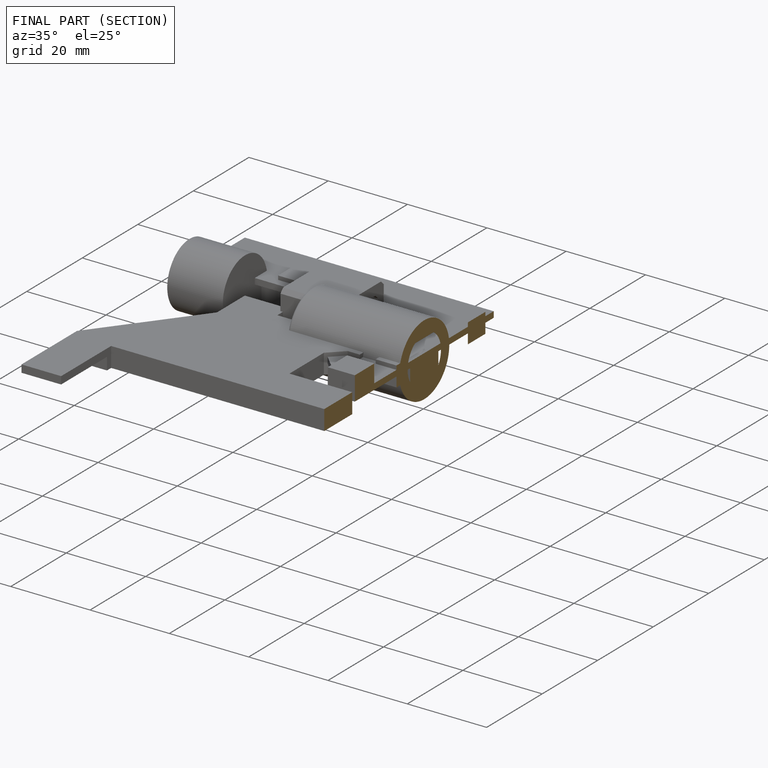
[diagram: finished part — half-section view (interior)]
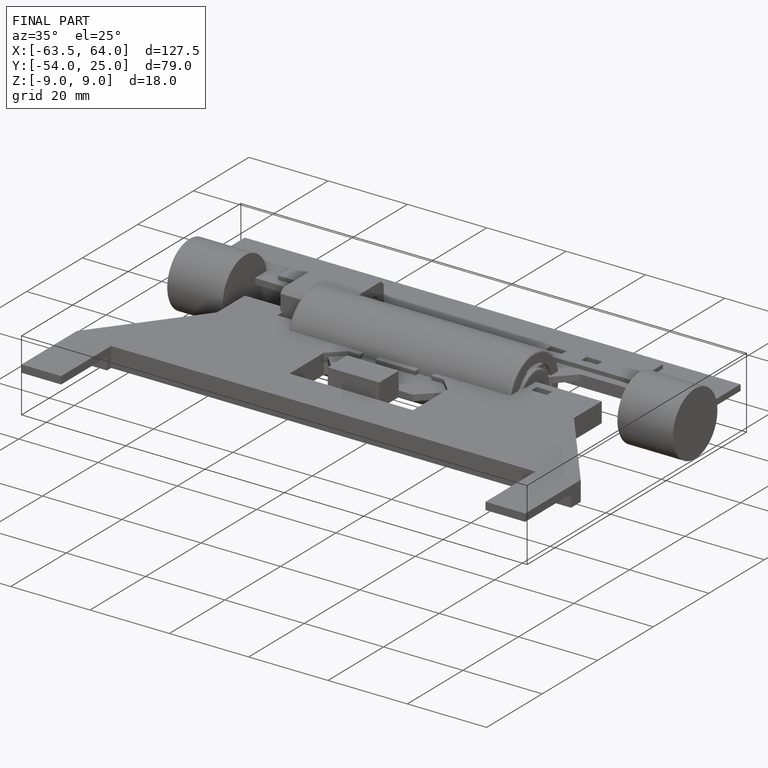
[diagram: finished part — iso view with bounding-box wireframe]
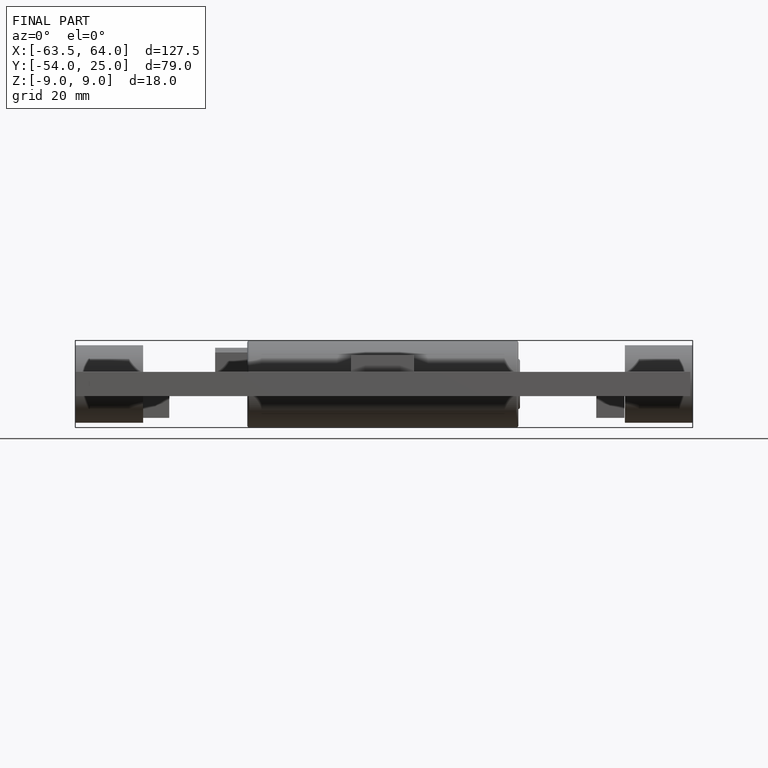
[diagram: finished part — front view with bounding-box wireframe]
